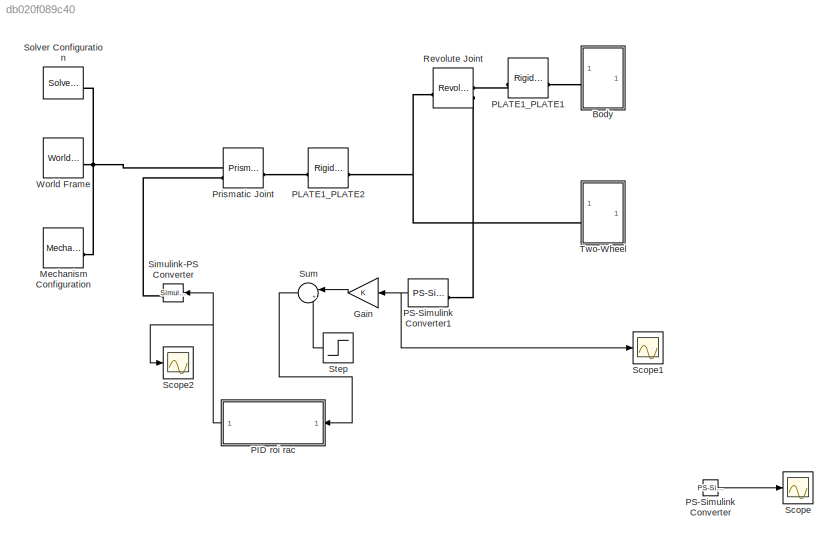
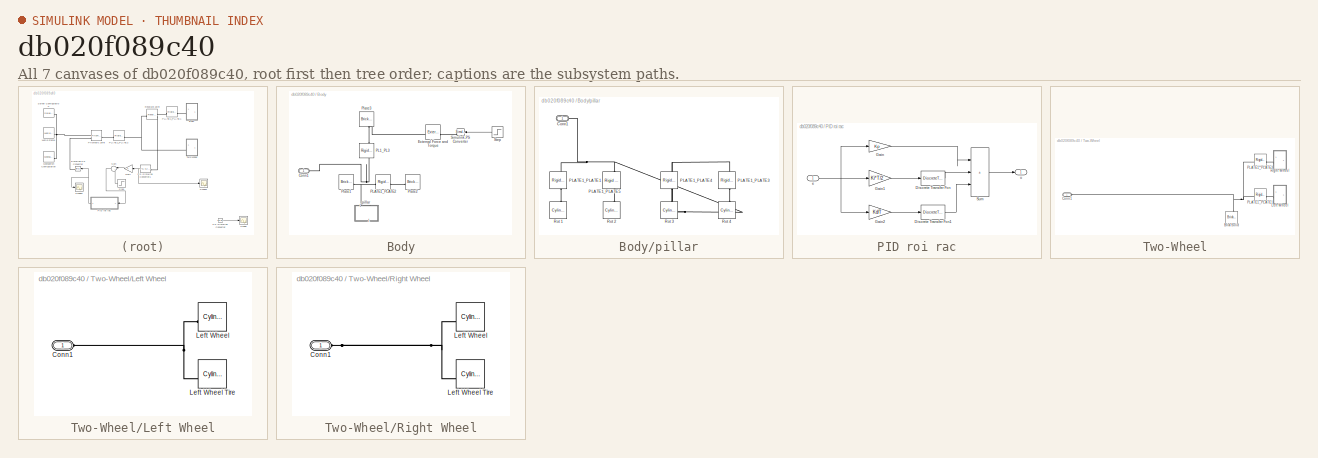
[diagram: thumbnail index - all 7 canvases of the model, root first then tree order]
MODEL slx_db020f089c40
KIND model
CONFIG AbsTol = 1e-3
CONFIG EnableMultiTasking = on
CONFIG FixedStep = auto
CONFIG MaxStep = auto
CONFIG MinStep = auto
CONFIG RelTol = 1e-3
CONFIG SampleTimeConstraint = Unconstrained
CONFIG SolverName = VariableStepAuto
CONFIG StartTime = 0.0
CONFIG StopTime = 10.0
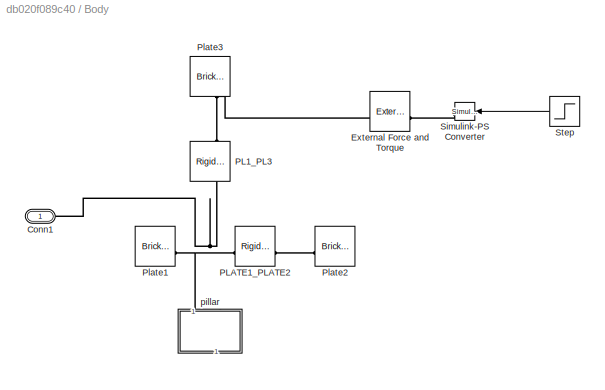
BLOCK [SubSystem] Body
BLOCK [PMIOPort] Body/Conn1
  Side = Left
BLOCK [Reference] Body/External Force and Torque  REF=sm_lib/Forces and
Torques/External Force
and Torque
  NameLocation = top
  SourceBlock = sm_lib/Forces and\nTorques/External Force\nand Torque
  SourceType = External Force\nand Torque
BLOCK [Reference] Body/PL1_PL3  REF=sm_lib/Frames and
Transforms/Rigid
Transform
  NameLocation = right
  SourceBlock = sm_lib/Frames and\nTransforms/Rigid\nTransform
  SourceType = Rigid\nTransform
BLOCK [Reference] Body/PLATE1_PLATE2  REF=sm_lib/Frames and
Transforms/Rigid
Transform
  SourceBlock = sm_lib/Frames and\nTransforms/Rigid\nTransform
  SourceType = Rigid\nTransform
BLOCK [Reference] Body/Plate1   REF=sm_lib/Body Elements/Brick Solid
  NameLocation = left
  SourceBlock = sm_lib/Body Elements/Brick Solid
  SourceType = Brick Solid
BLOCK [Reference] Body/Plate2  REF=sm_lib/Body Elements/Brick Solid
  NameLocation = right
  SourceBlock = sm_lib/Body Elements/Brick Solid
  SourceType = Brick Solid
BLOCK [Reference] Body/Plate3  REF=sm_lib/Body Elements/Brick Solid
  NameLocation = top
  SourceBlock = sm_lib/Body Elements/Brick Solid
  SourceType = Brick Solid
BLOCK [Reference] Body/Simulink-PS Converter  REF=nesl_utility/Simulink-PS
Converter
  NameLocation = top
  SourceBlock = nesl_utility/Simulink-PS\nConverter
  SourceType = Simulink-PS\nConverter
BLOCK [Step] Body/Step
  NameLocation = top
  SampleTime = 0
  Time = 0.01
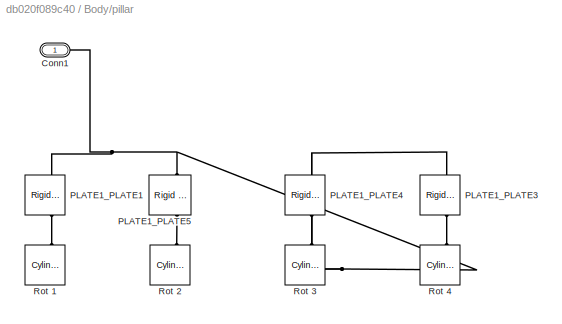
BLOCK [SubSystem] Body/pillar
  NameLocation = left
BLOCK [PMIOPort] Body/pillar/Conn1
  Side = Left
BLOCK [Reference] Body/pillar/PLATE1_PLATE1  REF=sm_lib/Frames and
Transforms/Rigid
Transform
  NameLocation = left
  SourceBlock = sm_lib/Frames and\nTransforms/Rigid\nTransform
  SourceType = Rigid\nTransform
BLOCK [Reference] Body/pillar/PLATE1_PLATE3  REF=sm_lib/Frames and
Transforms/Rigid
Transform
  NameLocation = left
  SourceBlock = sm_lib/Frames and\nTransforms/Rigid\nTransform
  SourceType = Rigid\nTransform
BLOCK [Reference] Body/pillar/PLATE1_PLATE4  REF=sm_lib/Frames and
Transforms/Rigid
Transform
  NameLocation = left
  SourceBlock = sm_lib/Frames and\nTransforms/Rigid\nTransform
  SourceType = Rigid\nTransform
BLOCK [Reference] Body/pillar/PLATE1_PLATE5  REF=sm_lib/Frames and
Transforms/Rigid
Transform
  NameLocation = left
  SourceBlock = sm_lib/Frames and\nTransforms/Rigid\nTransform
  SourceType = Rigid\nTransform
BLOCK [Reference] Body/pillar/Rot 1  REF=sm_lib/Body Elements/Cylindrical Solid
  NameLocation = right
  SourceBlock = sm_lib/Body Elements/Cylindrical Solid
  SourceType = Cylindrical Solid
BLOCK [Reference] Body/pillar/Rot 2  REF=sm_lib/Body Elements/Cylindrical Solid
  NameLocation = right
  SourceBlock = sm_lib/Body Elements/Cylindrical Solid
  SourceType = Cylindrical Solid
BLOCK [Reference] Body/pillar/Rot 3  REF=sm_lib/Body Elements/Cylindrical Solid
  NameLocation = right
  SourceBlock = sm_lib/Body Elements/Cylindrical Solid
  SourceType = Cylindrical Solid
BLOCK [Reference] Body/pillar/Rot 4  REF=sm_lib/Body Elements/Cylindrical Solid
  NameLocation = right
  SourceBlock = sm_lib/Body Elements/Cylindrical Solid
  SourceType = Cylindrical Solid
BLOCK [Gain] Gain
  NameLocation = top
BLOCK [Reference] Mechanism Configuration  REF=sm_lib/Utilities/Mechanism
Configuration
  SourceBlock = sm_lib/Utilities/Mechanism\nConfiguration
  SourceType = Mechanism\nConfiguration
BLOCK [SubSystem] PID roi rac
  NameLocation = top
BLOCK [DiscreteTransferFcn] PID roi rac/Discrete Transfer Fcn
  Denominator = [1 -1]
  InputPortMap = u0
  Numerator = [1 1]
BLOCK [DiscreteTransferFcn] PID roi rac/Discrete Transfer Fcn1
  Denominator = [1 0]
  InputPortMap = u0
  Numerator = [1 -1]
BLOCK [Gain] PID roi rac/Gain
  Gain = Kp
BLOCK [Gain] PID roi rac/Gain1
  Gain = Ki*T/2
BLOCK [Gain] PID roi rac/Gain2
  Gain = Kd/T
BLOCK [Sum] PID roi rac/Sum
  IconShape = rectangular
  Inputs = |+++
BLOCK [Inport] PID roi rac/e
BLOCK [Outport] PID roi rac/u
BLOCK [Reference] PLATE1_PLATE1  REF=sm_lib/Frames and
Transforms/Rigid
Transform
  SourceBlock = sm_lib/Frames and\nTransforms/Rigid\nTransform
  SourceType = Rigid\nTransform
BLOCK [Reference] PLATE1_PLATE2  REF=sm_lib/Frames and
Transforms/Rigid
Transform
  SourceBlock = sm_lib/Frames and\nTransforms/Rigid\nTransform
  SourceType = Rigid\nTransform
BLOCK [Reference] PS-Simulink Converter  REF=nesl_utility/PS-Simulink
Converter
  SourceBlock = nesl_utility/PS-Simulink\nConverter
  SourceType = PS-Simulink\nConverter
BLOCK [Reference] PS-Simulink Converter1  REF=nesl_utility/PS-Simulink
Converter
  NameLocation = top
  SourceBlock = nesl_utility/PS-Simulink\nConverter
  SourceType = PS-Simulink\nConverter
BLOCK [Reference] Prismatic Joint  REF=sm_lib/Joints/Prismatic
Joint
  SourceBlock = sm_lib/Joints/Prismatic\nJoint
  SourceType = Prismatic\nJoint
BLOCK [Reference] Revolute Joint  REF=sm_lib/Joints/Revolute Joint
  SourceBlock = sm_lib/Joints/Revolute Joint
  SourceType = Revolute Joint
BLOCK [Scope] Scope
  Floating = off
  NumInputPorts = 1
  ScopeSpecificationString = Simulink.scopes.TimeScopeBlockCfg('CurrentConfiguration', extmgr.ConfigurationSet(extmgr.Configuration('Core','General UI',true),extmgr.Configuration('Core','Source UI',true),extmgr.Configuration('Sources','WiredSimulink',true),extmgr.Configuration('Visuals','Time Domain',true),extmgr.Configuration('Tools','Plot Navigation',true),extmgr.Configuration('Tools','Measurements',true,'Version','2019b'))...<+19ch>
BLOCK [Scope] Scope1
  Floating = off
  NumInputPorts = 1
  ScopeSpecificationString = Simulink.scopes.TimeScopeBlockCfg('CurrentConfiguration', extmgr.ConfigurationSet(extmgr.Configuration('Core','General UI',true),extmgr.Configuration('Core','Source UI',true),extmgr.Configuration('Sources','WiredSimulink',true,'DataLoggingVariableName','ScopeData1'),extmgr.Configuration('Visuals','Time Domain',true,'SerializedDisplays',{struct('MinYLimReal','-2.5134','MaxYLimReal','2.98368','YLabe...<+1379ch>
BLOCK [Scope] Scope2
  Floating = off
  NumInputPorts = 1
  ScopeSpecificationString = Simulink.scopes.TimeScopeBlockCfg('CurrentConfiguration', extmgr.ConfigurationSet(extmgr.Configuration('Core','General UI',true),extmgr.Configuration('Core','Source UI',true),extmgr.Configuration('Sources','WiredSimulink',true,'DataLoggingVariableName','ScopeData2'),extmgr.Configuration('Visuals','Time Domain',true,'SerializedDisplays',{struct('MinYLimReal','-1.00000','MaxYLimReal','1.00000','YLab...<+1404ch>
BLOCK [Reference] Simulink-PS Converter  REF=nesl_utility/Simulink-PS
Converter
  NameLocation = top
  SourceBlock = nesl_utility/Simulink-PS\nConverter
  SourceType = Simulink-PS\nConverter
BLOCK [Reference] Solver Configuration  REF=nesl_utility/Solver
Configuration
  SourceBlock = nesl_utility/Solver\nConfiguration
  SourceType = Solver\nConfiguration
BLOCK [Step] Step
  After = 0
  Before = 10
  NameLocation = top
  SampleTime = 0
  Time = 0.01
BLOCK [Sum] Sum
  Inputs = |+-
  NameLocation = top
BLOCK [SubSystem] Two-Wheel
BLOCK [Reference] Two-Wheel/Brick Solid  REF=sm_lib/Body Elements/Brick Solid
  NameLocation = right
  SourceBlock = sm_lib/Body Elements/Brick Solid
  SourceType = Brick Solid
BLOCK [PMIOPort] Two-Wheel/Conn1
  Side = Left
BLOCK [SubSystem] Two-Wheel/Left Wheel
BLOCK [PMIOPort] Two-Wheel/Left Wheel/Conn1
  Side = Left
BLOCK [Reference] Two-Wheel/Left Wheel/Left Wheel  REF=sm_lib/Body Elements/Cylindrical Solid
  NameLocation = top
  SourceBlock = sm_lib/Body Elements/Cylindrical Solid
  SourceType = Cylindrical Solid
BLOCK [Reference] Two-Wheel/Left Wheel/Left Wheel Tire  REF=sm_lib/Body Elements/Cylindrical Solid
  NameLocation = top
  SourceBlock = sm_lib/Body Elements/Cylindrical Solid
  SourceType = Cylindrical Solid
BLOCK [Reference] Two-Wheel/PLATE1_PLATE1  REF=sm_lib/Frames and
Transforms/Rigid
Transform
  SourceBlock = sm_lib/Frames and\nTransforms/Rigid\nTransform
  SourceType = Rigid\nTransform
BLOCK [Reference] Two-Wheel/PLATE1_PLATE3  REF=sm_lib/Frames and
Transforms/Rigid
Transform
  SourceBlock = sm_lib/Frames and\nTransforms/Rigid\nTransform
  SourceType = Rigid\nTransform
BLOCK [SubSystem] Two-Wheel/Right Wheel
BLOCK [PMIOPort] Two-Wheel/Right Wheel/Conn1
  Side = Left
BLOCK [Reference] Two-Wheel/Right Wheel/Left Wheel  REF=sm_lib/Body Elements/Cylindrical Solid
  NameLocation = top
  SourceBlock = sm_lib/Body Elements/Cylindrical Solid
  SourceType = Cylindrical Solid
BLOCK [Reference] Two-Wheel/Right Wheel/Left Wheel Tire  REF=sm_lib/Body Elements/Cylindrical Solid
  NameLocation = top
  SourceBlock = sm_lib/Body Elements/Cylindrical Solid
  SourceType = Cylindrical Solid
BLOCK [Reference] World Frame  REF=sm_lib/Frames and
Transforms/World Frame
  SourceBlock = sm_lib/Frames and\nTransforms/World Frame
  SourceType = World Frame
LINE Body/Step:1 -> Body/Simulink-PS Converter:1
LINE Gain:1 -> Sum:1
LINE PID roi rac/Discrete Transfer Fcn1:1 -> PID roi rac/Sum:3
LINE PID roi rac/Discrete Transfer Fcn:1 -> PID roi rac/Sum:2
LINE PID roi rac/Gain1:1 -> PID roi rac/Discrete Transfer Fcn:1
LINE PID roi rac/Gain2:1 -> PID roi rac/Discrete Transfer Fcn1:1
LINE PID roi rac/Gain:1 -> PID roi rac/Sum:1
LINE PID roi rac/Sum:1 -> PID roi rac/u:1
NET PID roi rac/e:1 -> PID roi rac/Gain1:1, PID roi rac/Gain2:1, PID roi rac/Gain:1
NET PID roi rac:1 -> Scope2:1, Simulink-PS Converter:1
NET PS-Simulink Converter1:1 -> Gain:1, Scope1:1
LINE PS-Simulink Converter:1 -> Scope:1
LINE Step:1 -> Sum:2
LINE Sum:1 -> PID roi rac:1
PNET net1: Body/Conn1:RConn1 -- Body/PL1_PL3:LConn1 -- Body/PLATE1_PLATE2:LConn1 -- Body/Plate1 :RConn1 -- Body/pillar:LConn1
PLINE Body/External Force and Torque:LConn1 -- Body/Simulink-PS Converter:RConn1
PNET net2: Body/External Force and Torque:RConn1 -- Body/PL1_PL3:RConn1 -- Body/Plate3:RConn1
PLINE Body/PLATE1_PLATE2:RConn1 -- Body/Plate2:RConn1
PNET net3: Body/pillar/Conn1:RConn1 -- Body/pillar/PLATE1_PLATE1:LConn1 -- Body/pillar/PLATE1_PLATE3:LConn1 -- Body/pillar/PLATE1_PLATE4:LConn1 -- Body/pillar/PLATE1_PLATE5:LConn1
PLINE Body/pillar/PLATE1_PLATE1:RConn1 -- Body/pillar/Rot 1:RConn1
PLINE Body/pillar/PLATE1_PLATE3:RConn1 -- Body/pillar/Rot 4:RConn1
PLINE Body/pillar/PLATE1_PLATE4:RConn1 -- Body/pillar/Rot 3:RConn1
PLINE Body/pillar/PLATE1_PLATE5:RConn1 -- Body/pillar/Rot 2:RConn1
PLINE Body:LConn1 -- PLATE1_PLATE1:RConn1
PNET net4: Mechanism Configuration:RConn1 -- Prismatic Joint:LConn1 -- Solver Configuration:RConn1 -- World Frame:RConn1
PLINE PLATE1_PLATE1:LConn1 -- Revolute Joint:RConn1
PLINE PLATE1_PLATE2:LConn1 -- Prismatic Joint:RConn1
PNET net5: PLATE1_PLATE2:RConn1 -- Revolute Joint:LConn1 -- Two-Wheel:LConn1
PLINE PS-Simulink Converter1:LConn1 -- Revolute Joint:RConn2
PLINE Prismatic Joint:LConn2 -- Simulink-PS Converter:RConn1
PNET net6: Two-Wheel/Brick Solid:RConn1 -- Two-Wheel/Conn1:RConn1 -- Two-Wheel/PLATE1_PLATE1:LConn1 -- Two-Wheel/PLATE1_PLATE3:LConn1
PNET net7: Two-Wheel/Left Wheel/Conn1:RConn1 -- Two-Wheel/Left Wheel/Left Wheel Tire:RConn1 -- Two-Wheel/Left Wheel/Left Wheel:RConn1
PLINE Two-Wheel/Left Wheel:LConn1 -- Two-Wheel/PLATE1_PLATE1:RConn1
PLINE Two-Wheel/PLATE1_PLATE3:RConn1 -- Two-Wheel/Right Wheel:LConn1
PNET net8: Two-Wheel/Right Wheel/Conn1:RConn1 -- Two-Wheel/Right Wheel/Left Wheel Tire:RConn1 -- Two-Wheel/Right Wheel/Left Wheel:RConn1
note: NET lines group one-source signal fan-out (src -> all destinations, sorted); 1:1 wires keep LINE; PNET lines group multi-terminal physical nets as a canonical sorted terminal list (undirected conserving connections); 2-terminal nets keep the pairwise PLINE form
